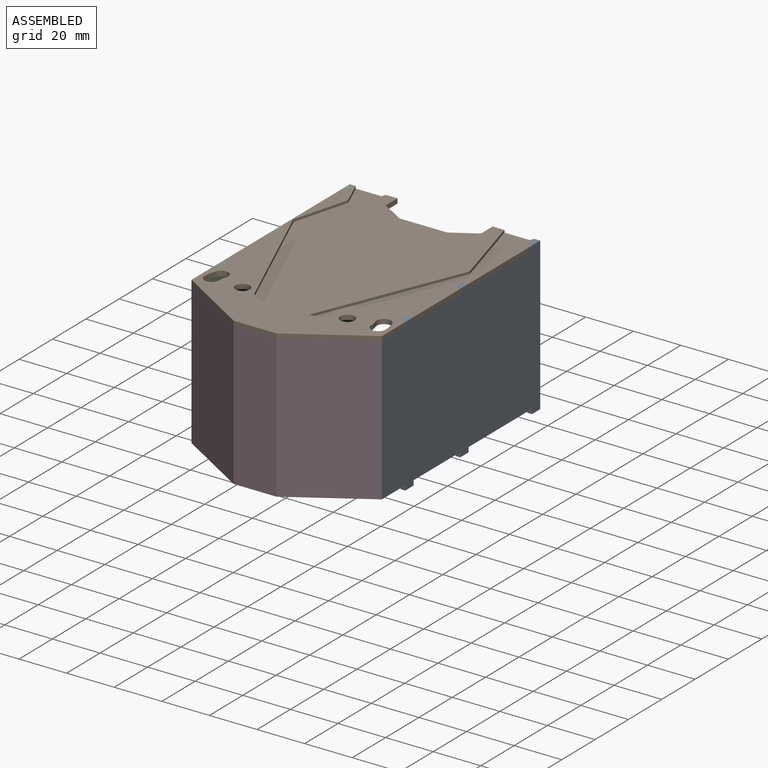
[diagram: assembled view]
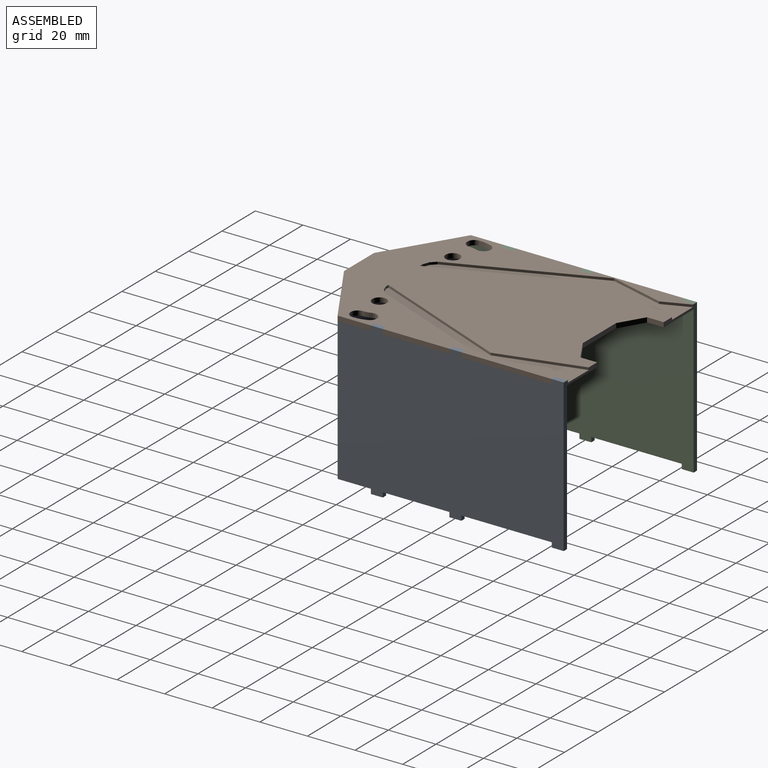
[diagram: assembled view, second angle]
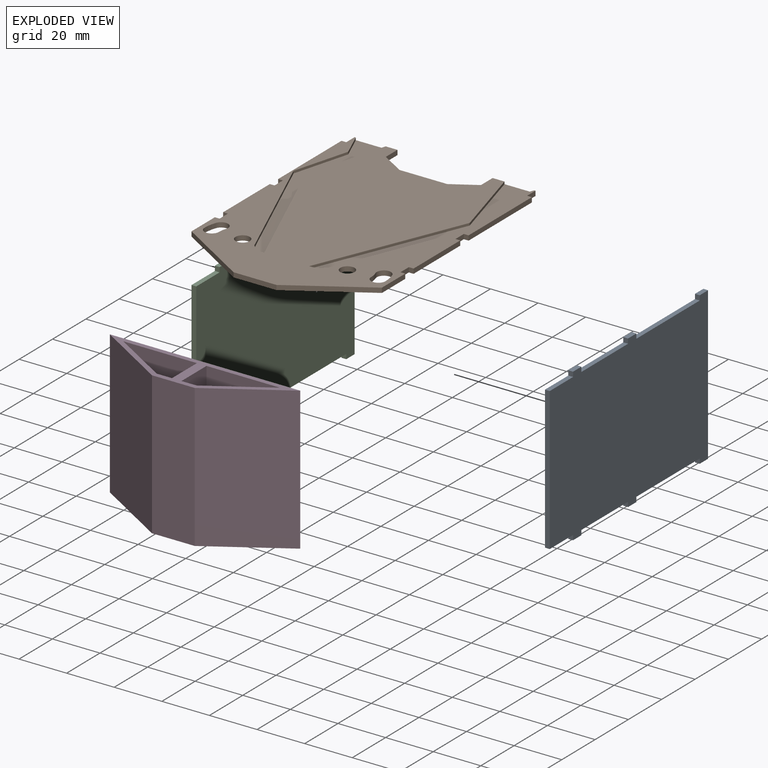
[diagram: exploded view]
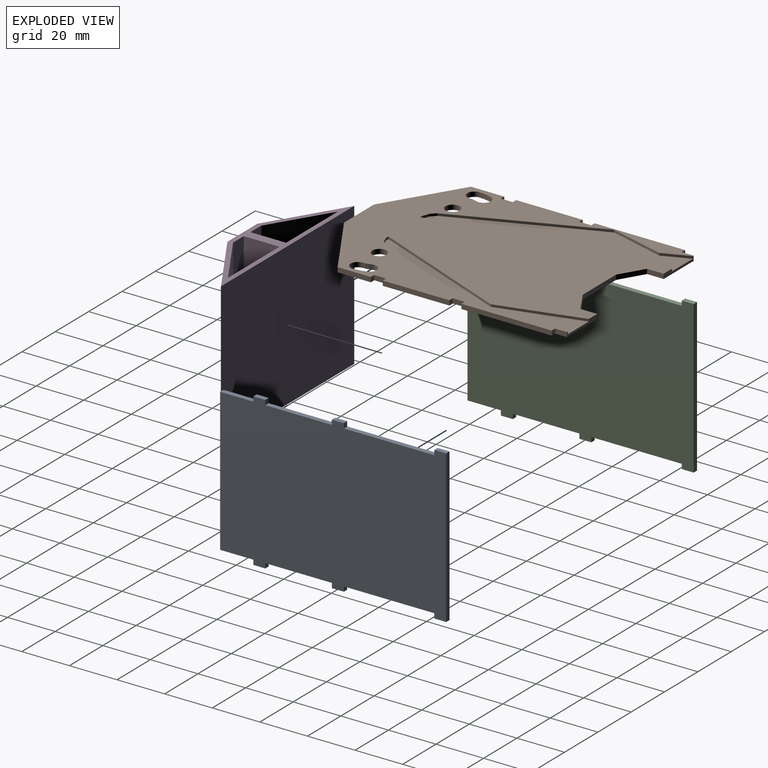
[diagram: exploded view, second angle]
ASSEMBLY  parts=4 mates=3
PART A: 26 faces, bbox 64x95x2 mm
  f0: plane 64x2mm, normal (0,-1,0), area 128mm2, adj f1,f23,f24,f25
  f1: plane 5x2mm, normal (1,0,0), area 10mm2, adj f0,f2,f24,f25
  f2: plane 2x2mm, normal (0,1,0), area 4mm2, adj f1,f3,f24,f25
  f3: plane 38x2mm, normal (1,0,0), area 76mm2, adj f2,f4,f24,f25
  f4: plane 2x2mm, normal (0,-1,0), area 4mm2, adj f3,f5,f24,f25
  f5: plane 5x2mm, normal (1,0,0), area 10mm2, adj f4,f6,f24,f25
  f6: plane 2x2mm, normal (0,1,0), area 4mm2, adj f5,f7,f24,f25
  f7: plane 28x2mm, normal (1,0,0), area 56mm2, adj f6,f8,f24,f25
  f8: plane 2x2mm, normal (0,-1,0), area 4mm2, adj f7,f9,f24,f25
  f9: plane 5x2mm, normal (1,0,0), area 10mm2, adj f8,f10,f24,f25
  f10: plane 2x2mm, normal (0,1,0), area 4mm2, adj f9,f11,f24,f25
  f11: plane 14x2mm, normal (1,0,0), area 28mm2, adj f10,f12,f24,f25
  f12: plane 60x2mm, normal (0,1,0), area 120mm2, adj f11,f13,f24,f25
  f13: plane 14x2mm, normal (-1,0,0), area 28mm2, adj f12,f14,f24,f25
  f14: plane 2x2mm, normal (0,1,0), area 4mm2, adj f13,f15,f24,f25
  f15: plane 5x2mm, normal (-1,0,0), area 10mm2, adj f14,f16,f24,f25
  f16: plane 2x2mm, normal (0,-1,0), area 4mm2, adj f15,f17,f24,f25
  f17: plane 28x2mm, normal (-1,0,0), area 56mm2, adj f16,f18,f24,f25
  f18: plane 2x2mm, normal (0,1,0), area 4mm2, adj f17,f19,f24,f25
  f19: plane 5x2mm, normal (-1,0,0), area 10mm2, adj f18,f20,f24,f25
  f20: plane 2x2mm, normal (0,-1,0), area 4mm2, adj f19,f21,f24,f25
  f21: plane 38x2mm, normal (-1,0,0), area 76mm2, adj f20,f22,f24,f25
  f22: plane 2x2mm, normal (0,1,0), area 4mm2, adj f21,f23,f24,f25
  f23: plane 5x2mm, normal (-1,0,0), area 10mm2, adj f0,f22,f24,f25
  f24: plane 95x64mm, normal (0,0,1), area 5760mm2, adj f0,f1,f2,f3,f4,f5,f6,f7
  f25: plane 95x64mm, normal (0,0,-1), area 5760mm2, adj f0,f1,f2,f3,f4,f5,f6,f7
PART B: 64 faces, bbox 80x114x2 mm
  f0: plane 14x2mm, normal (1,0,0), area 28mm2, adj f3,f4,f6,f29
  f1: plane 38x2mm, normal (1,0,0), area 76mm2, adj f3,f4,f26,f32
  f2: plane 28x2mm, normal (1,0,0), area 56mm2, adj f3,f4,f27,f31
  f3: plane 114x80mm, normal (0,0,1), area 6817.5mm2, adj f0,f1,f2,f5,f6,f7,f8,f9
  f4: plane 114x80mm, normal (0,0,-1), area 7843.4mm2, adj f0,f1,f2,f5,f6,f7,f8,f9
  f5: plane 18x2mm, normal (0,-1,0), area 36mm2, adj f3,f4,f6,f37
  f6: plane 31x19mm, normal (0.52,-0.85,0), area 72.7mm2, adj f0,f3,f4,f5
  f7: plane 18x2mm, normal (0,1,0), area 23.5mm2, adj f3,f4,f8,f17,f18,f25,f33
  f8: plane 7x2mm, normal (-1,0,0), area 14mm2, adj f3,f4,f7,f9
  f9: plane 10x6mm, normal (-0.51,0.86,0), area 23.3mm2, adj f3,f4,f8,f13
  f10: cylinder r=16mm len=5.47mm, axis (0,0,-1), area 11.2mm2, adj f3,f4,f11,f14
  f11: cylinder r=3mm len=6mm, axis (0,0,-1), area 18.8mm2, adj f3,f4,f10,f12
  f12: cylinder r=10mm len=3.42mm, axis (0,0,-1), area 7mm2, adj f3,f4,f11,f14
  f13: plane 20x2mm, normal (0,1,0), area 40mm2, adj f3,f4,f9,f40
  f14: cylinder r=3mm len=5.82mm, axis (0,0,-1), area 18.8mm2, adj f3,f4,f10,f12
  f15: cylinder r=3mm len=6mm, axis (0,0,-1), area 37.7mm2, adj f3,f4
  f16: plane 23.5x6.5mm, normal (-0.96,-0.27,0), area 24.4mm2, adj f3,f17,f24,f25
  f17: plane 11x4.5mm, normal (-0.93,0.38,0), area 11.9mm2, adj f3,f7,f16,f25
  f18: plane 34.5x9.54mm, normal (0.96,0.27,0), area 35.8mm2, adj f3,f7,f19,f25
  f19: plane 60.5x25.04mm, normal (0.92,-0.38,0), area 65.5mm2, adj f3,f18,f20,f25
  f20: plane 1.54x1mm, normal (0,1,0), area 1.5mm2, adj f3,f19,f21,f25
  f21: plane 2.7x1mm, normal (-0.35,0.94,0), area 2.9mm2, adj f3,f20,f22,f25
  f22: plane 2x2mm, normal (-0.71,0.71,0), area 2.8mm2, adj f3,f21,f23,f25
  f23: plane 3.75x1.55mm, normal (-0.92,0.38,0), area 4.1mm2, adj f3,f22,f24,f25
  f24: plane 53.75x22.25mm, normal (-0.92,0.38,0), area 58.2mm2, adj f3,f16,f23,f25
  f25: plane 95x30.04mm, normal (0,0,1), area 513mm2, adj f7,f16,f17,f18,f19,f20,f21,f22
  f26: plane 2x2mm, normal (0,-1,0), area 4mm2, adj f1,f3,f4,f28
  f27: plane 2x2mm, normal (0,1,0), area 4mm2, adj f2,f3,f4,f28
  f28: plane 5x2mm, normal (1,0,0), area 10mm2, adj f3,f4,f26,f27
  f29: plane 2x2mm, normal (0,1,0), area 4mm2, adj f0,f3,f4,f30
  f30: plane 5x2mm, normal (1,0,0), area 10mm2, adj f3,f4,f29,f31
  f31: plane 2x2mm, normal (0,-1,0), area 4mm2, adj f2,f3,f4,f30
  f32: plane 2x2mm, normal (0,1,0), area 4mm2, adj f1,f3,f4,f33
  f33: plane 5x2mm, normal (1,0,0), area 10mm2, adj f3,f4,f7,f32
  f34: plane 14x2mm, normal (-1,0,0), area 28mm2, adj f3,f4,f37,f59
  f35: plane 38x2mm, normal (-1,0,0), area 76mm2, adj f3,f4,f56,f62
  f36: plane 28x2mm, normal (-1,0,0), area 56mm2, adj f3,f4,f57,f61
  f37: plane 31x19mm, normal (-0.52,-0.85,0), area 72.7mm2, adj f3,f4,f5,f34
  f38: plane 18x2mm, normal (0,1,0), area 23.5mm2, adj f3,f4,f39,f47,f48,f55,f63
  f39: plane 7x2mm, normal (1,0,0), area 14mm2, adj f3,f4,f38,f40
  f40: plane 10x6mm, normal (0.51,0.86,0), area 23.3mm2, adj f3,f4,f13,f39
  f41: cylinder r=16mm len=5.47mm, axis (0,0,-1), area 11.2mm2, adj f3,f4,f42,f44
  f42: cylinder r=3mm len=6mm, axis (0,0,-1), area 18.8mm2, adj f3,f4,f41,f43
  f43: cylinder r=10mm len=3.42mm, axis (0,0,-1), area 7mm2, adj f3,f4,f42,f44
  f44: cylinder r=3mm len=5.82mm, axis (0,0,-1), area 18.8mm2, adj f3,f4,f41,f43
  f45: cylinder r=3mm len=6mm, axis (0,0,-1), area 37.7mm2, adj f3,f4
  f46: plane 23.5x6.5mm, normal (0.96,-0.27,0), area 24.4mm2, adj f3,f47,f54,f55
  f47: plane 11x4.5mm, normal (0.93,0.38,0), area 11.9mm2, adj f3,f38,f46,f55
  f48: plane 34.5x9.54mm, normal (-0.96,0.27,0), area 35.8mm2, adj f3,f38,f49,f55
  f49: plane 60.5x25.04mm, normal (-0.92,-0.38,0), area 65.5mm2, adj f3,f48,f50,f55
  f50: plane 1.54x1mm, normal (0,1,0), area 1.5mm2, adj f3,f49,f51,f55
  f51: plane 2.7x1mm, normal (0.35,0.94,0), area 2.9mm2, adj f3,f50,f52,f55
  f52: plane 2x2mm, normal (0.71,0.71,0), area 2.8mm2, adj f3,f51,f53,f55
  f53: plane 3.75x1.55mm, normal (0.92,0.38,0), area 4.1mm2, adj f3,f52,f54,f55
  f54: plane 53.75x22.25mm, normal (0.92,0.38,0), area 58.2mm2, adj f3,f46,f53,f55
  f55: plane 95x30.04mm, normal (0,0,1), area 513mm2, adj f38,f46,f47,f48,f49,f50,f51,f52
  f56: plane 2x2mm, normal (0,-1,0), area 4mm2, adj f3,f4,f35,f58
  f57: plane 2x2mm, normal (0,1,0), area 4mm2, adj f3,f4,f36,f58
  f58: plane 5x2mm, normal (-1,0,0), area 10mm2, adj f3,f4,f56,f57
  f59: plane 2x2mm, normal (0,1,0), area 4mm2, adj f3,f4,f34,f60
  f60: plane 5x2mm, normal (-1,0,0), area 10mm2, adj f3,f4,f59,f61
  f61: plane 2x2mm, normal (0,-1,0), area 4mm2, adj f3,f4,f36,f60
  f62: plane 2x2mm, normal (0,1,0), area 4mm2, adj f3,f4,f35,f63
  f63: plane 5x2mm, normal (-1,0,0), area 10mm2, adj f3,f4,f38,f62
PART C: same geometry as A
PART D: 14 faces, bbox 80x19x60 mm
  f0: plane 60x15mm, normal (1,0,0), area 900mm2, adj f1,f6,f7,f8
  f1: plane 60x30.91mm, normal (0,-1,0), area 1854.6mm2, adj f0,f2,f7,f8
  f2: plane 60x24.47mm, normal (-0.52,0.85,0), area 1722.3mm2, adj f1,f6,f7,f8
  f3: plane 80x60mm, normal (0,1,0), area 4800mm2, adj f5,f7,f8,f12
  f4: plane 60x18mm, normal (0,-1,0), area 1080mm2, adj f5,f7,f8,f12
  f5: plane 60x31mm, normal (0.52,-0.85,0), area 2181.6mm2, adj f3,f4,f7,f8
  f6: plane 60x6.44mm, normal (0,1,0), area 386.2mm2, adj f0,f2,f7,f8
  f7: plane 80x19mm, normal (0,0,1), area 370.8mm2, adj f0,f1,f2,f3,f4,f5,f6,f9
  f8: plane 80x19mm, normal (0,0,-1), area 370.8mm2, adj f0,f1,f2,f3,f4,f5,f6,f9
  f9: plane 60x15mm, normal (-1,0,0), area 900mm2, adj f7,f8,f10,f13
  f10: plane 60x30.91mm, normal (0,-1,0), area 1854.6mm2, adj f7,f8,f9,f11
  f11: plane 60x24.47mm, normal (0.52,0.85,0), area 1722.3mm2, adj f7,f8,f10,f13
  f12: plane 60x31mm, normal (-0.52,-0.85,0), area 2181.6mm2, adj f3,f4,f7,f8
  f13: plane 60x6.44mm, normal (0,1,0), area 386.2mm2, adj f7,f8,f9,f11
PLACE A rot(axis=(0.71,0,0.71),180deg) t=(38,5.63,-23.44)mm
PLACE B t=(0,10.63,0)mm
PLACE C rot(axis=(0.71,0,0.71),180deg) t=(-40,5.63,-23.44)mm
PLACE D t=(0,10.63,-60)mm
MATE fastened C.f24 <-> B.f63  axis (1,0,0) through (-38,53.13,2)mm
MATE fastened A.f25 <-> B.f33  axis (-1,0,0) through (38,53.13,2)mm
MATE fastened D.f7 <-> B.f4  axis (0,0,1) through (0,-58.37,0)mm
